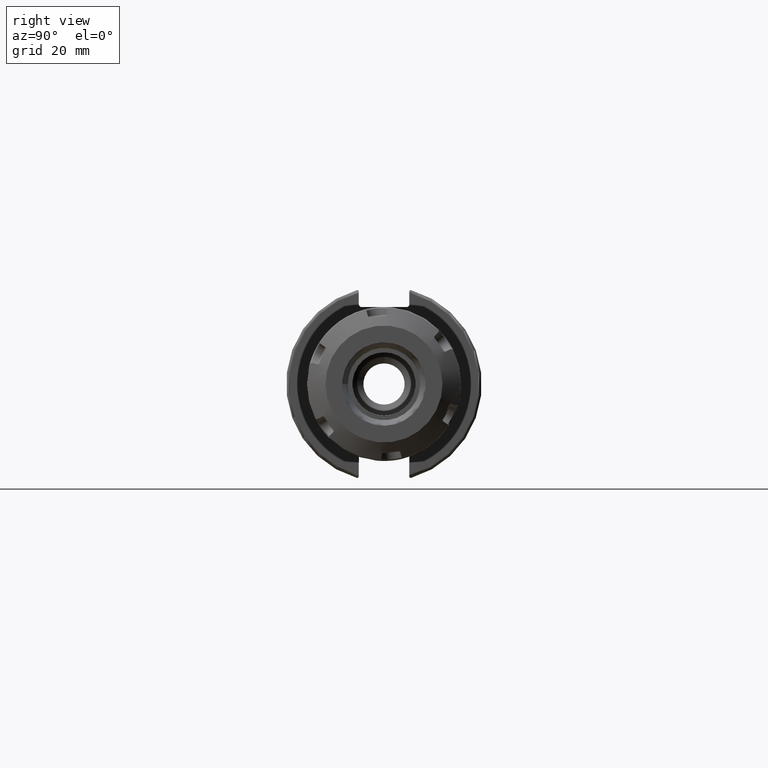
[diagram: clean part render]
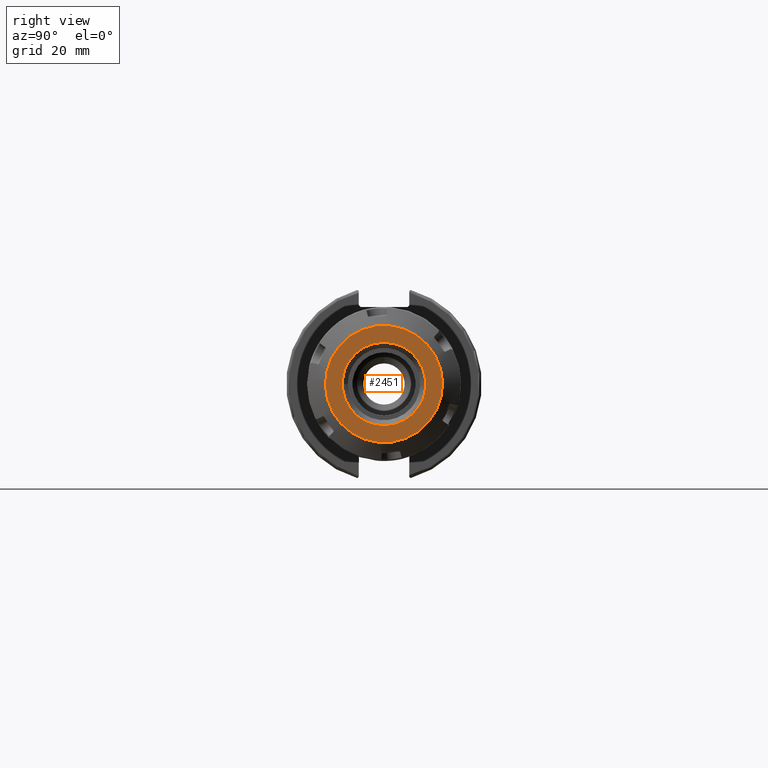
[diagram: same view with one face highlighted and labeled with its STEP entity id]
A machine part, right view. The second image highlights one B-rep face of the part: STEP entity #2451.
In plain terms, the highlighted planar face has unit normal (1, -0, 0).
Its self-contained STEP definition (entity closure, byte-faithful):
#247=FACE_BOUND('',#575,.T.);
#281=PLANE('',#2735);
#418=FACE_OUTER_BOUND('',#574,.T.);
#574=EDGE_LOOP('',(#1993));
#575=EDGE_LOOP('',(#1994));
#1017=CIRCLE('',#2734,13.55);
#1018=CIRCLE('',#2736,19.);
#1173=VERTEX_POINT('',#3982);
#1174=VERTEX_POINT('',#3986);
#1461=EDGE_CURVE('',#1173,#1173,#1017,.T.);
#1462=EDGE_CURVE('',#1174,#1174,#1018,.T.);
#1993=ORIENTED_EDGE('',*,*,#1462,.T.);
#1994=ORIENTED_EDGE('',*,*,#1461,.F.);
#2451=ADVANCED_FACE('',(#418,#247),#281,.T.);
#2734=AXIS2_PLACEMENT_3D('',#3984,#3200,#3201);
#2735=AXIS2_PLACEMENT_3D('',#3985,#3202,#3203);
#2736=AXIS2_PLACEMENT_3D('',#3987,#3204,#3205);
#3200=DIRECTION('center_axis',(1.,0.,0.));
#3201=DIRECTION('ref_axis',(0.,-1.,0.));
#3202=DIRECTION('center_axis',(1.,0.,0.));
#3203=DIRECTION('ref_axis',(0.,0.,-1.));
#3204=DIRECTION('center_axis',(1.,0.,0.));
#3205=DIRECTION('ref_axis',(0.,0.,1.));
#3982=CARTESIAN_POINT('',(11.25,13.55,1.65939641284466E-15));
#3984=CARTESIAN_POINT('Origin',(11.25,0.,0.));
#3985=CARTESIAN_POINT('Origin',(11.25,0.,0.));
#3986=CARTESIAN_POINT('',(11.25,0.,19.));
#3987=CARTESIAN_POINT('Origin',(11.25,0.,0.));